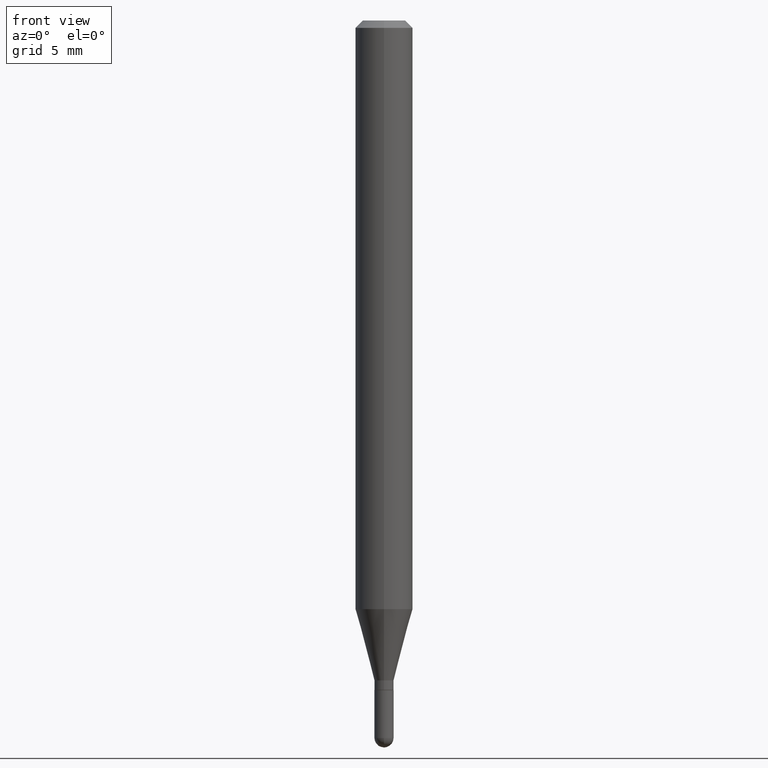
[diagram: clean part render]
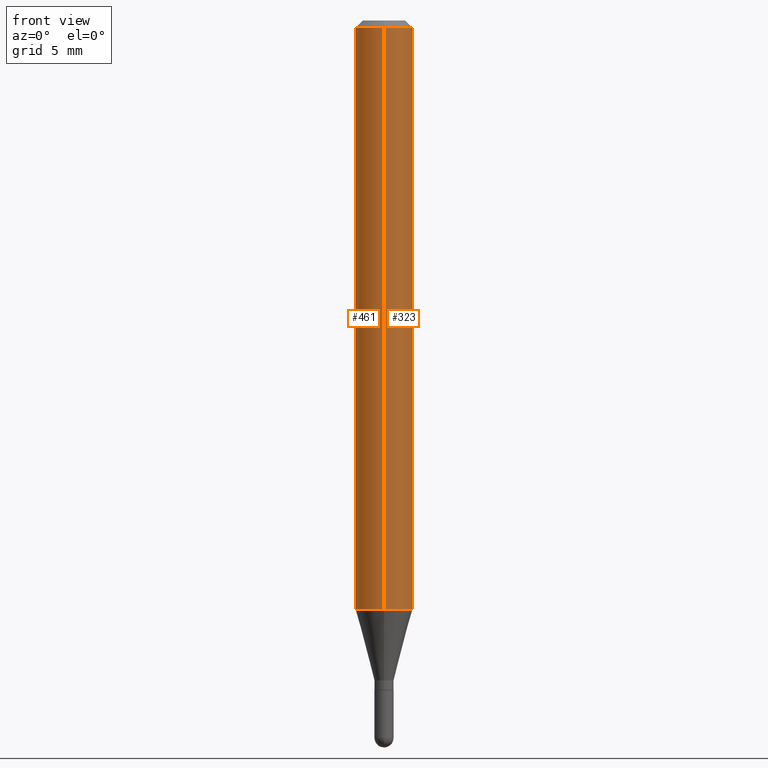
[diagram: same view with one multi-face feature highlighted, each face labeled with its STEP entity id]
A machine part, front view. The highlighted faces form ONE feature: a constant-radius fillet chain: 2 tangent blend faces with common blend radius 1.4999 mm. The faces share edges in the B-rep.
Their STEP definitions:
[1] entity #323 (Cylinder):
#9 = DIRECTION ( 'NONE',  ( -2.445625033905502397E-29, 3.491257611855652389E-15, 1.000000000000000000 ) ) ;
#33 = EDGE_LOOP ( 'NONE', ( #392, #407, #64, #70 ) ) ;
#49 = CARTESIAN_POINT ( 'NONE',  ( 4.195754854663390985E-16, 0.05904999999999999832, -2.061587619800762305E-16 ) ) ;
#64 = ORIENTED_EDGE ( 'NONE', *, *, #478, .F. ) ;
#70 = ORIENTED_EDGE ( 'NONE', *, *, #303, .F. ) ;
#94 = VECTOR ( 'NONE', #9, 39.37007874015748143 ) ;
#96 = AXIS2_PLACEMENT_3D ( 'NONE', #502, #231, #311 ) ;
#109 = VECTOR ( 'NONE', #211, 39.37007874015748143 ) ;
#140 = CARTESIAN_POINT ( 'NONE',  ( 3.668437550858259428E-31, -5.236886417783486226E-17, -0.01500000000000002373 ) ) ;
#143 = DIRECTION ( 'NONE',  ( -2.445625033905502397E-29, 3.491257611855651995E-15, 1.000000000000000000 ) ) ;
#145 = CARTESIAN_POINT ( 'NONE',  ( 2.962248161208970335E-29, -4.228764139084222964E-15, -1.211243800722163311 ) ) ;
#159 = CARTESIAN_POINT ( 'NONE',  ( -4.123439461173446476E-16, -0.05905000000000424493, -1.211243800722163089 ) ) ;
#178 = CARTESIAN_POINT ( 'NONE',  ( 4.195754854663688780E-16, 0.05904999999999994975, -0.01500000000000023016 ) ) ;
#184 = CARTESIAN_POINT ( 'NONE',  ( -4.123439461173736383E-16, -0.05905000000000005383, -0.01499999999999981730 ) ) ;
#190 = FACE_OUTER_BOUND ( 'NONE', #33, .T. ) ;
#208 = LINE ( 'NONE', #371, #94 ) ;
#211 = DIRECTION ( 'NONE',  ( -2.445625033905502397E-29, 3.491257611855652389E-15, 1.000000000000000000 ) ) ;
#221 = CYLINDRICAL_SURFACE ( 'NONE', #96, 0.05904999999999999832 ) ;
#231 = DIRECTION ( 'NONE',  ( -2.445625033905502397E-29, 3.491257611855651995E-15, 1.000000000000000000 ) ) ;
#235 = AXIS2_PLACEMENT_3D ( 'NONE', #145, #143, #302 ) ;
#251 = LINE ( 'NONE', #49, #109 ) ;
#285 = CIRCLE ( 'NONE', #235, 0.05904999999999999832 ) ;
#297 = EDGE_CURVE ( 'NONE', #495, #424, #251, .T. ) ;
#302 = DIRECTION ( 'NONE',  ( -6.982962677686265922E-15, -1.000000000000000000, 4.626330217890369336E-15 ) ) ;
#303 = EDGE_CURVE ( 'NONE', #501, #491, #208, .T. ) ;
#311 = DIRECTION ( 'NONE',  ( -6.982962677686265922E-15, -1.000000000000000000, 3.491257611855651601E-15 ) ) ;
#323 = ADVANCED_FACE ( 'NONE', ( #190 ), #221, .T. ) ;
#367 = CIRCLE ( 'NONE', #448, 0.05904999999999999832 ) ;
#371 = CARTESIAN_POINT ( 'NONE',  ( -4.123439461173739834E-16, -0.05904999999999999832, 2.061587619800762305E-16 ) ) ;
#385 = DIRECTION ( 'NONE',  ( -6.982962677686265922E-15, -1.000000000000000000, 3.505890868245046092E-15 ) ) ;
#392 = ORIENTED_EDGE ( 'NONE', *, *, #468, .T. ) ;
#407 = ORIENTED_EDGE ( 'NONE', *, *, #297, .T. ) ;
#419 = DIRECTION ( 'NONE',  ( -2.445625033905502397E-29, 3.491257611855651995E-15, 1.000000000000000000 ) ) ;
#424 = VERTEX_POINT ( 'NONE', #178 ) ;
#448 = AXIS2_PLACEMENT_3D ( 'NONE', #140, #419, #385 ) ;
#468 = EDGE_CURVE ( 'NONE', #501, #495, #285, .T. ) ;
#473 = CARTESIAN_POINT ( 'NONE',  ( 4.195754854663685822E-16, 0.05904999999999575866, -1.211243800722163533 ) ) ;
#478 = EDGE_CURVE ( 'NONE', #491, #424, #367, .T. ) ;
#491 = VERTEX_POINT ( 'NONE', #184 ) ;
#495 = VERTEX_POINT ( 'NONE', #473 ) ;
#501 = VERTEX_POINT ( 'NONE', #159 ) ;
#502 = CARTESIAN_POINT ( 'NONE',  ( 0.000000000000000000, 0.000000000000000000, 0.000000000000000000 ) ) ;
[2] entity #461 (Cylinder):
#7 = DIRECTION ( 'NONE',  ( -6.982962677686265922E-15, -1.000000000000000000, 3.505890868245046092E-15 ) ) ;
#9 = DIRECTION ( 'NONE',  ( -2.445625033905502397E-29, 3.491257611855652389E-15, 1.000000000000000000 ) ) ;
#19 = DIRECTION ( 'NONE',  ( -6.982962677686265922E-15, -1.000000000000000000, 4.626330217890369336E-15 ) ) ;
#28 = CYLINDRICAL_SURFACE ( 'NONE', #77, 0.05904999999999999832 ) ;
#49 = CARTESIAN_POINT ( 'NONE',  ( 4.195754854663390985E-16, 0.05904999999999999832, -2.061587619800762305E-16 ) ) ;
#59 = CARTESIAN_POINT ( 'NONE',  ( 0.000000000000000000, 0.000000000000000000, 0.000000000000000000 ) ) ;
#77 = AXIS2_PLACEMENT_3D ( 'NONE', #59, #218, #105 ) ;
#80 = EDGE_LOOP ( 'NONE', ( #188, #261, #280, #226 ) ) ;
#94 = VECTOR ( 'NONE', #9, 39.37007874015748143 ) ;
#105 = DIRECTION ( 'NONE',  ( -6.982962677686265922E-15, -1.000000000000000000, 3.491257611855651601E-15 ) ) ;
#109 = VECTOR ( 'NONE', #211, 39.37007874015748143 ) ;
#127 = CIRCLE ( 'NONE', #260, 0.05904999999999999832 ) ;
#159 = CARTESIAN_POINT ( 'NONE',  ( -4.123439461173446476E-16, -0.05905000000000424493, -1.211243800722163089 ) ) ;
#175 = CARTESIAN_POINT ( 'NONE',  ( 3.668437550858259428E-31, -5.236886417783486226E-17, -0.01500000000000002373 ) ) ;
#178 = CARTESIAN_POINT ( 'NONE',  ( 4.195754854663688780E-16, 0.05904999999999994975, -0.01500000000000023016 ) ) ;
#184 = CARTESIAN_POINT ( 'NONE',  ( -4.123439461173736383E-16, -0.05905000000000005383, -0.01499999999999981730 ) ) ;
#188 = ORIENTED_EDGE ( 'NONE', *, *, #297, .F. ) ;
#193 = CIRCLE ( 'NONE', #310, 0.05904999999999999832 ) ;
#208 = LINE ( 'NONE', #371, #94 ) ;
#211 = DIRECTION ( 'NONE',  ( -2.445625033905502397E-29, 3.491257611855652389E-15, 1.000000000000000000 ) ) ;
#218 = DIRECTION ( 'NONE',  ( -2.445625033905502397E-29, 3.491257611855651995E-15, 1.000000000000000000 ) ) ;
#226 = ORIENTED_EDGE ( 'NONE', *, *, #265, .F. ) ;
#251 = LINE ( 'NONE', #49, #109 ) ;
#260 = AXIS2_PLACEMENT_3D ( 'NONE', #500, #422, #19 ) ;
#261 = ORIENTED_EDGE ( 'NONE', *, *, #380, .T. ) ;
#265 = EDGE_CURVE ( 'NONE', #424, #491, #193, .T. ) ;
#280 = ORIENTED_EDGE ( 'NONE', *, *, #303, .T. ) ;
#297 = EDGE_CURVE ( 'NONE', #495, #424, #251, .T. ) ;
#303 = EDGE_CURVE ( 'NONE', #501, #491, #208, .T. ) ;
#310 = AXIS2_PLACEMENT_3D ( 'NONE', #175, #406, #7 ) ;
#371 = CARTESIAN_POINT ( 'NONE',  ( -4.123439461173739834E-16, -0.05904999999999999832, 2.061587619800762305E-16 ) ) ;
#380 = EDGE_CURVE ( 'NONE', #495, #501, #127, .T. ) ;
#406 = DIRECTION ( 'NONE',  ( -2.445625033905502397E-29, 3.491257611855651995E-15, 1.000000000000000000 ) ) ;
#416 = FACE_OUTER_BOUND ( 'NONE', #80, .T. ) ;
#422 = DIRECTION ( 'NONE',  ( -2.445625033905502397E-29, 3.491257611855651995E-15, 1.000000000000000000 ) ) ;
#424 = VERTEX_POINT ( 'NONE', #178 ) ;
#461 = ADVANCED_FACE ( 'NONE', ( #416 ), #28, .T. ) ;
#473 = CARTESIAN_POINT ( 'NONE',  ( 4.195754854663685822E-16, 0.05904999999999575866, -1.211243800722163533 ) ) ;
#491 = VERTEX_POINT ( 'NONE', #184 ) ;
#495 = VERTEX_POINT ( 'NONE', #473 ) ;
#500 = CARTESIAN_POINT ( 'NONE',  ( 2.962248161208970335E-29, -4.228764139084222964E-15, -1.211243800722163311 ) ) ;
#501 = VERTEX_POINT ( 'NONE', #159 ) ;